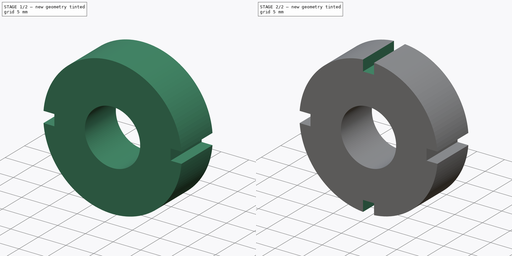
[diagram: build sequence overview — one tinted view per stage of 2, left to right]
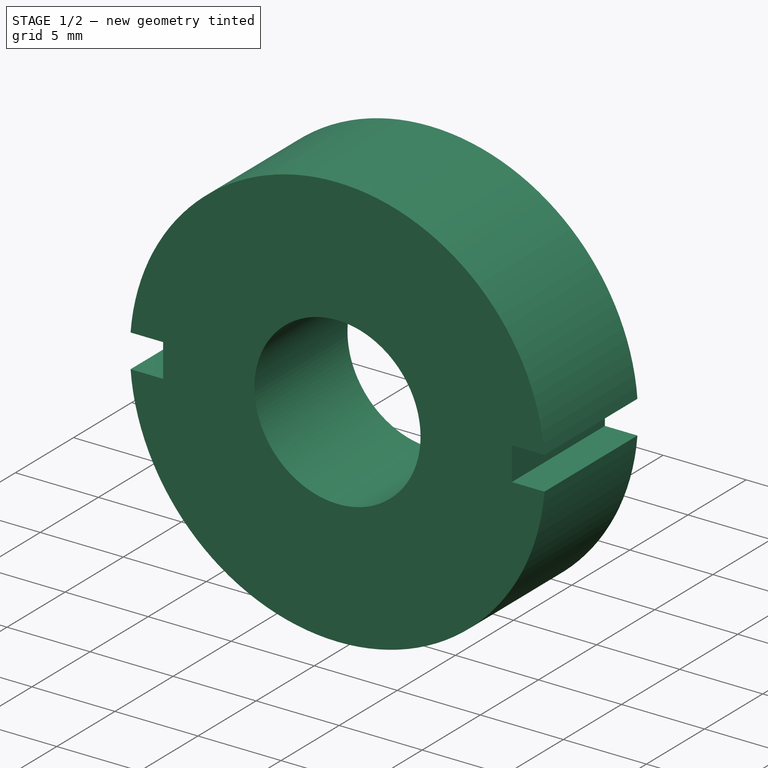
[diagram: stage 1 of 2 — iso view after this stage's code; geometry added in this stage tinted green]
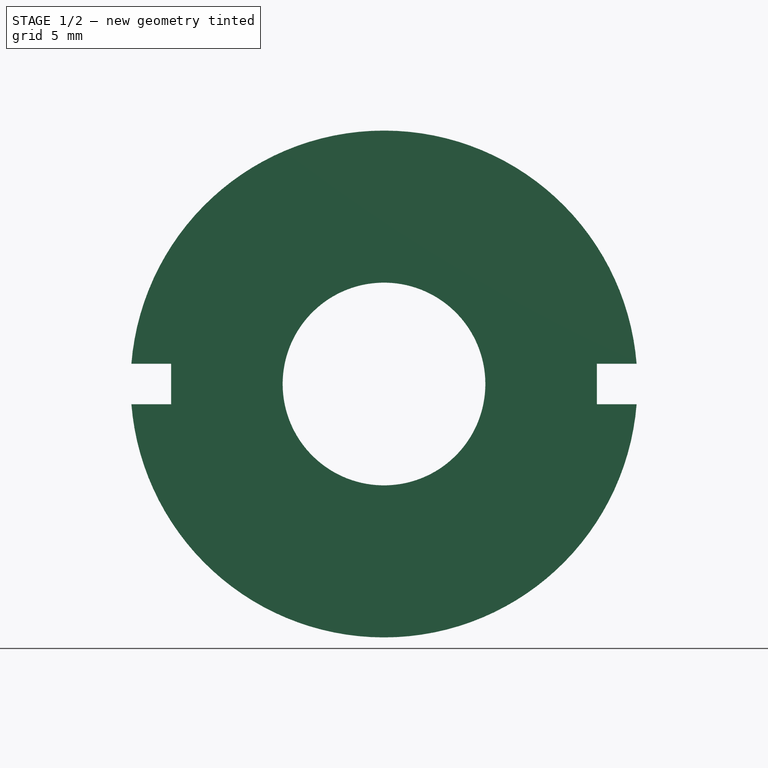
[diagram: stage 1 of 2 — front view after this stage's code; geometry added in this stage tinted green]
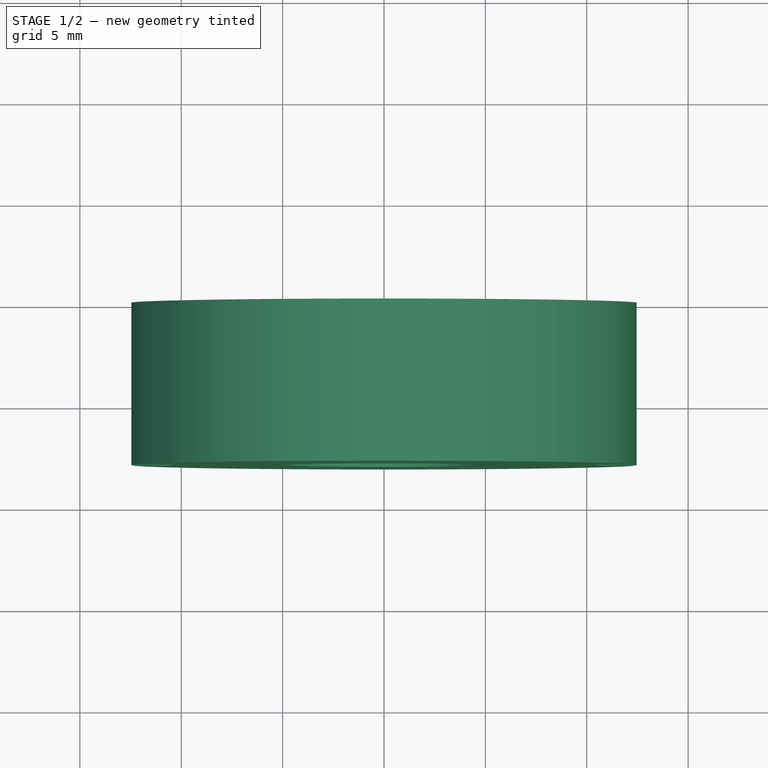
[diagram: stage 1 of 2 — top view after this stage's code; geometry added in this stage tinted green]
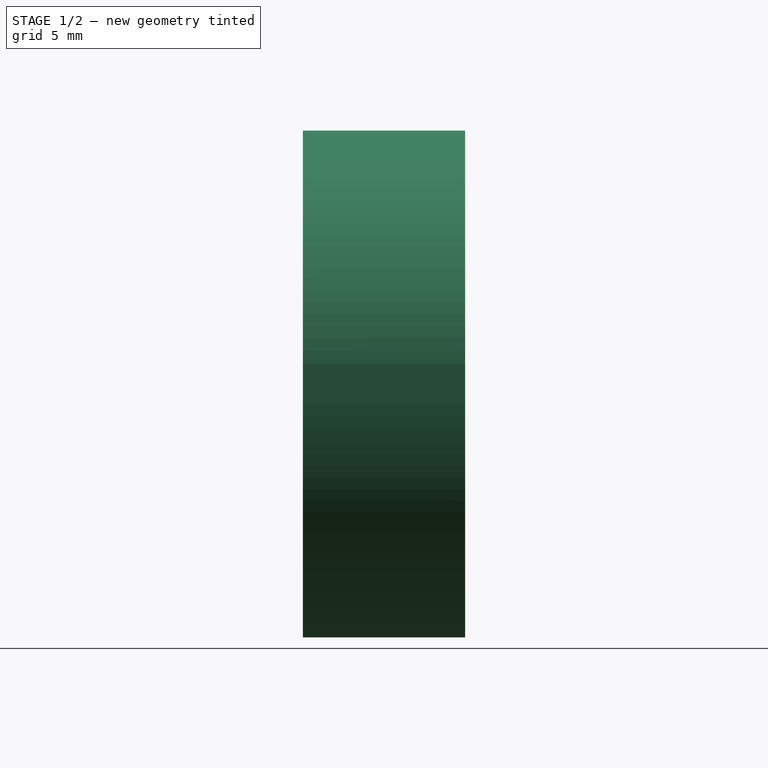
[diagram: stage 1 of 2 — right view after this stage's code; geometry added in this stage tinted green]
FCSTD DOCUMENT  (FreeCAD 0.16RUnknown)
Label: tope
License: All rights reserved
LicenseURL: http://en.wikipedia.org/wiki/All_rights_reserved
objects: Sketcher::SketchObject×3, PartDesign::Pocket×2, PartDesign::Pad×1
note: 9 computed .brp shape members not serialized (recipe doc carries the construction recipe); baked Part::Feature solids carry a one-line shape summary decoded from their .brp

FEATURE [Sketcher::SketchObject] Sketch
  Placement = pos=(0,0,0) rot=(-1,0,0;4.71239rad)
  sketch-geometry (2):
    g0: Circle CenterX=0 CenterY=0 CenterZ=0 NormalX=0 NormalY=0 NormalZ=1 Radius=12.5
    g1: Circle CenterX=0 CenterY=0 CenterZ=0 NormalX=0 NormalY=0 NormalZ=1 Radius=5
  constraints (4):
    c: Coincident(g0,g-1)
    c: Radius(g0) = 12.5
    c: Coincident(g1,g-1)
    c: Radius(g1) = 5
FEATURE [PartDesign::Pad] Pad
  Length = 8
  Length2 = 100
  Placement = pos=(0,0,0) rot=(-1,0,0;4.71239rad)
  Sketch = -> Sketch
  Type = 0
FEATURE [Sketcher::SketchObject] Sketch001
  Placement = pos=(0,-8,0) rot=(1,0,0;1.5708rad)
  Support = -> Pad [Face4]
  sketch-geometry (8):
    g0: LineSegment StartX=10.5 StartY=1 StartZ=0 EndX=18.7287 EndY=1 EndZ=0
    g1: LineSegment StartX=18.7287 StartY=1 StartZ=0 EndX=18.7287 EndY=-1 EndZ=0
    g2: LineSegment StartX=18.7287 StartY=-1 StartZ=0 EndX=10.5 EndY=-1 EndZ=0
    g3: LineSegment StartX=10.5 StartY=-1 StartZ=0 EndX=10.5 EndY=1 EndZ=0
    g4: LineSegment StartX=-10.5 StartY=1 StartZ=0 EndX=-16.1338 EndY=1 EndZ=0
    g5: LineSegment StartX=-16.1338 StartY=1 StartZ=0 EndX=-16.1338 EndY=-1 EndZ=0
    g6: LineSegment StartX=-16.1338 StartY=-1 StartZ=0 EndX=-10.5 EndY=-1 EndZ=0
    g7: LineSegment StartX=-10.5 StartY=-1 StartZ=0 EndX=-10.5 EndY=1 EndZ=0
  constraints (21):
    c: Coincident(g0,g1)
    c: Coincident(g1,g2)
    c: Coincident(g2,g3)
    c: Coincident(g3,g0)
    c: Horizontal(g0)
    c: Horizontal(g2)
    c: Vertical(g1)
    c: Vertical(g3)
    c: Symmetric(g2,g0,g-1)
    c: DistanceY(g1,g1) = 2
    c: Coincident(g4,g5)
    c: Coincident(g5,g6)
    c: Coincident(g6,g7)
    c: Coincident(g7,g4)
    c: Horizontal(g4)
    c: Horizontal(g6)
    c: Vertical(g5)
    c: Vertical(g7)
    c: DistanceX(g6,g2) = 21
    c: Symmetric(g6,g2,g-2)
    c: DistanceY(g5,g4) = 2
FEATURE [PartDesign::Pocket] Pocket
  Length = 5
  Placement = pos=(0,0,0) rot=(-1,0,0;4.71239rad)
  Sketch = -> Sketch001
  Type = 1
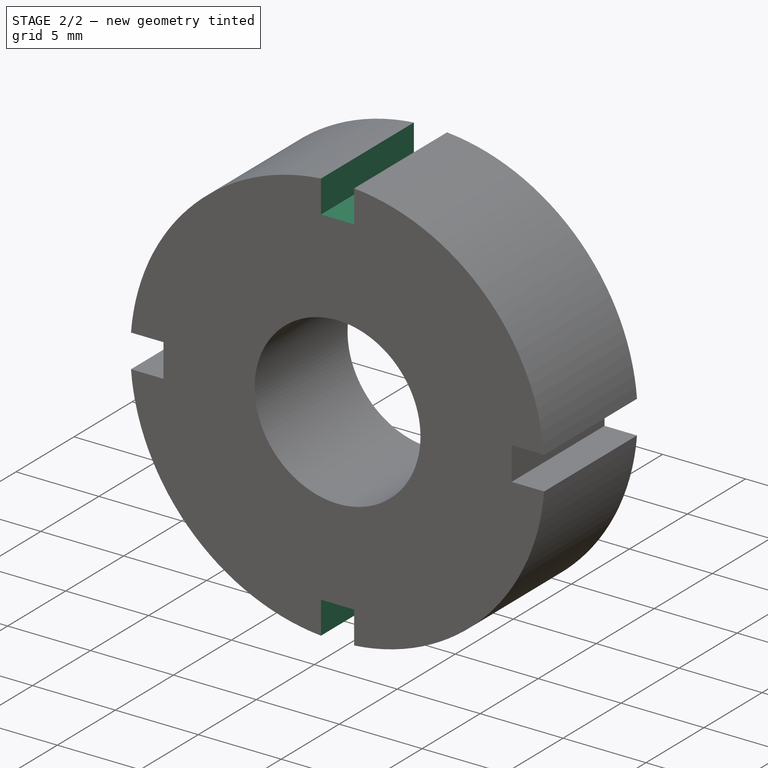
[diagram: stage 2 of 2 — iso view after this stage's code; geometry added in this stage tinted green]
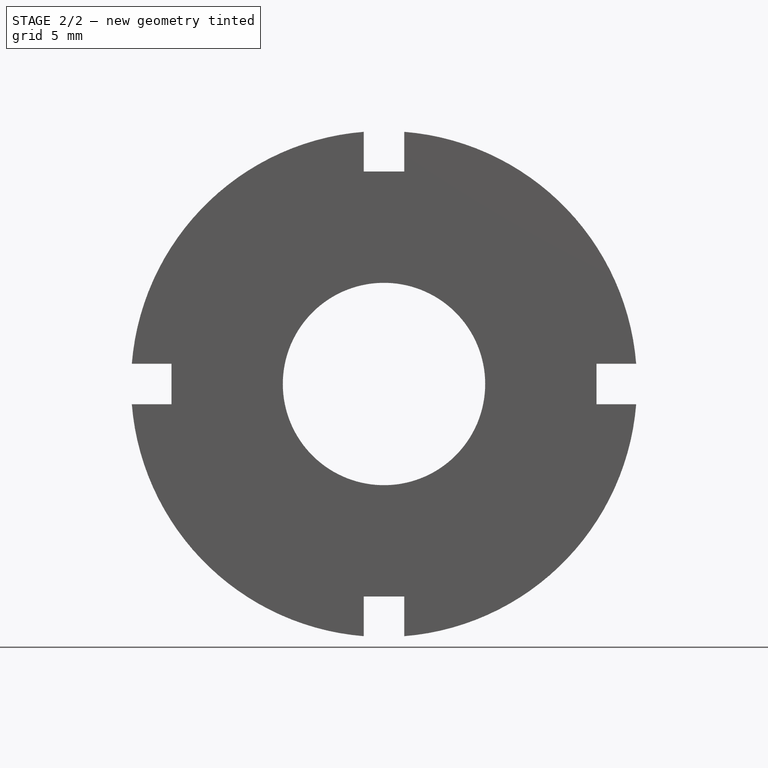
[diagram: stage 2 of 2 — front view after this stage's code; geometry added in this stage tinted green]
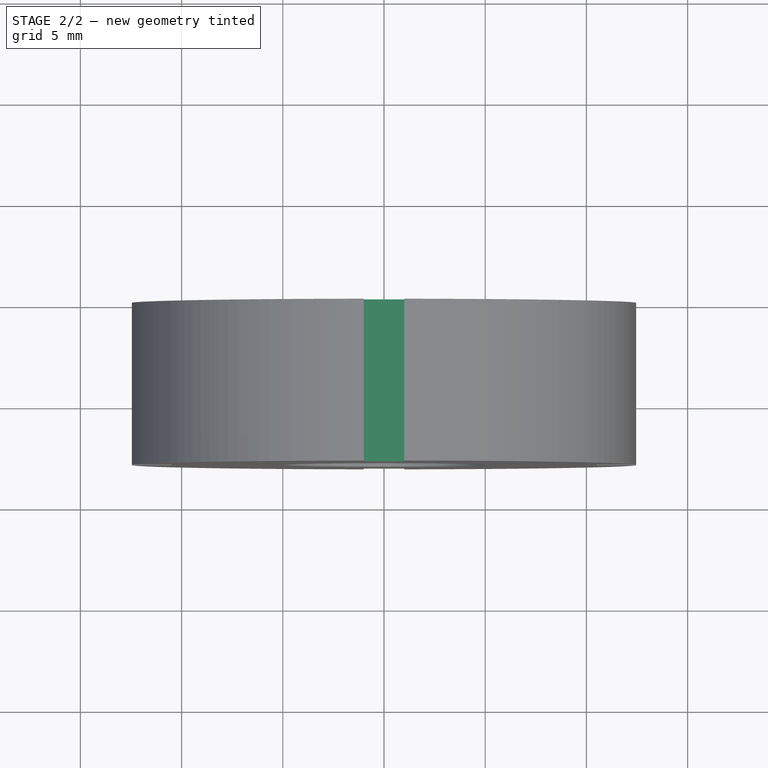
[diagram: stage 2 of 2 — top view after this stage's code; geometry added in this stage tinted green]
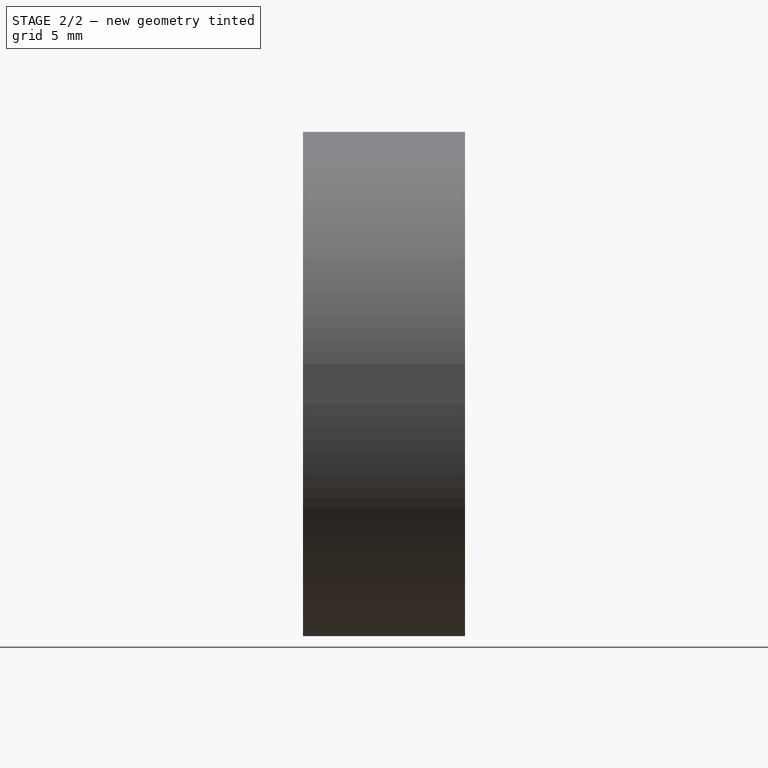
[diagram: stage 2 of 2 — right view after this stage's code; geometry added in this stage tinted green]
FEATURE [Sketcher::SketchObject] Sketch002
  Placement = pos=(0,-8,0) rot=(1,0,0;1.5708rad)
  Support = -> Pocket [Face4]
  sketch-geometry (8):
    g0: LineSegment StartX=-1 StartY=14.181 StartZ=0 EndX=1 EndY=14.181 EndZ=0
    g1: LineSegment StartX=1 StartY=14.181 StartZ=0 EndX=1 EndY=10.5 EndZ=0
    g2: LineSegment StartX=1 StartY=10.5 StartZ=0 EndX=-1 EndY=10.5 EndZ=0
    g3: LineSegment StartX=-1 StartY=10.5 StartZ=0 EndX=-1 EndY=14.181 EndZ=0
    g4: LineSegment StartX=-1 StartY=-10.5 StartZ=0 EndX=1 EndY=-10.5 EndZ=0
    g5: LineSegment StartX=1 StartY=-10.5 StartZ=0 EndX=1 EndY=-14.0224 EndZ=0
    g6: LineSegment StartX=1 StartY=-14.0224 StartZ=0 EndX=-1 EndY=-14.0224 EndZ=0
    g7: LineSegment StartX=-1 StartY=-14.0224 StartZ=0 EndX=-1 EndY=-10.5 EndZ=0
  constraints (22):
    c: Coincident(g0,g1)
    c: Coincident(g1,g2)
    c: Coincident(g2,g3)
    c: Coincident(g3,g0)
    c: Horizontal(g0)
    c: Horizontal(g2)
    c: Vertical(g1)
    c: Vertical(g3)
    c: Coincident(g4,g5)
    c: Coincident(g5,g6)
    c: Coincident(g6,g7)
    c: Coincident(g7,g4)
    c: Horizontal(g4)
    c: Horizontal(g6)
    c: Vertical(g5)
    c: Vertical(g7)
    c: Symmetric(g5,g6,g-2)
    c: Symmetric(g1,g2,g-2)
    c: DistanceY(g4,g1) = 21
    c: Equal(g6,g0)
    c: DistanceX(g6,g5) = 2
    c: Symmetric(g1,g4,g-1)
FEATURE [PartDesign::Pocket] Pocket001  label="Tope"
  Length = 5
  Placement = pos=(0,0,0) rot=(-1,0,0;4.71239rad)
  Sketch = -> Sketch002
  Type = 1
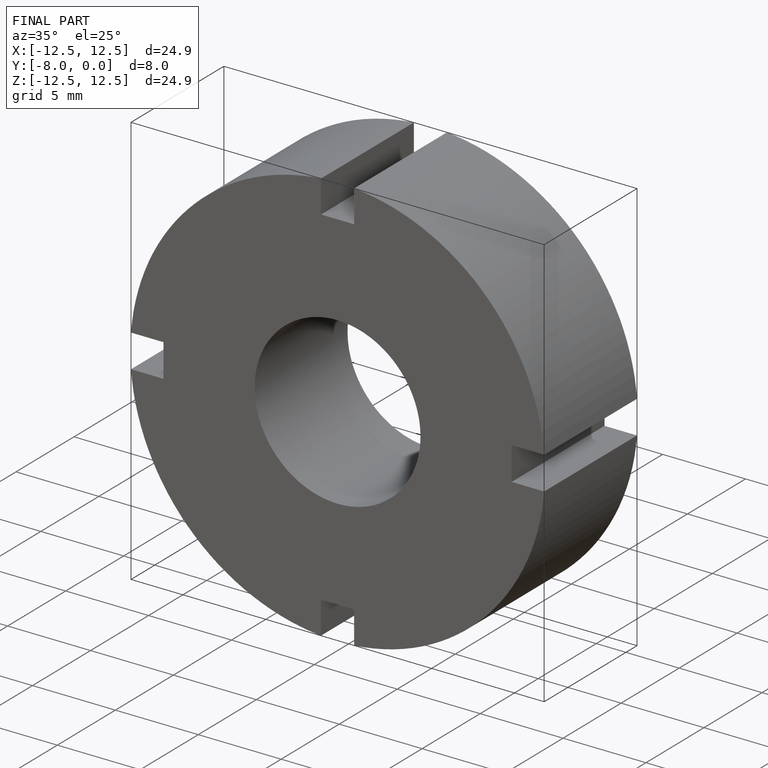
[diagram: finished part — iso view with bounding-box wireframe]
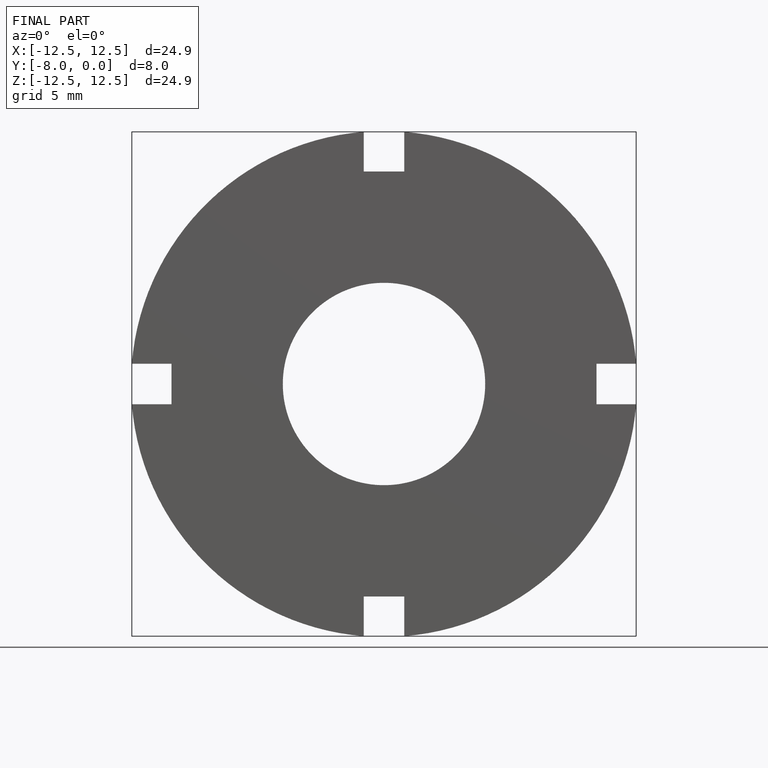
[diagram: finished part — front view with bounding-box wireframe]
